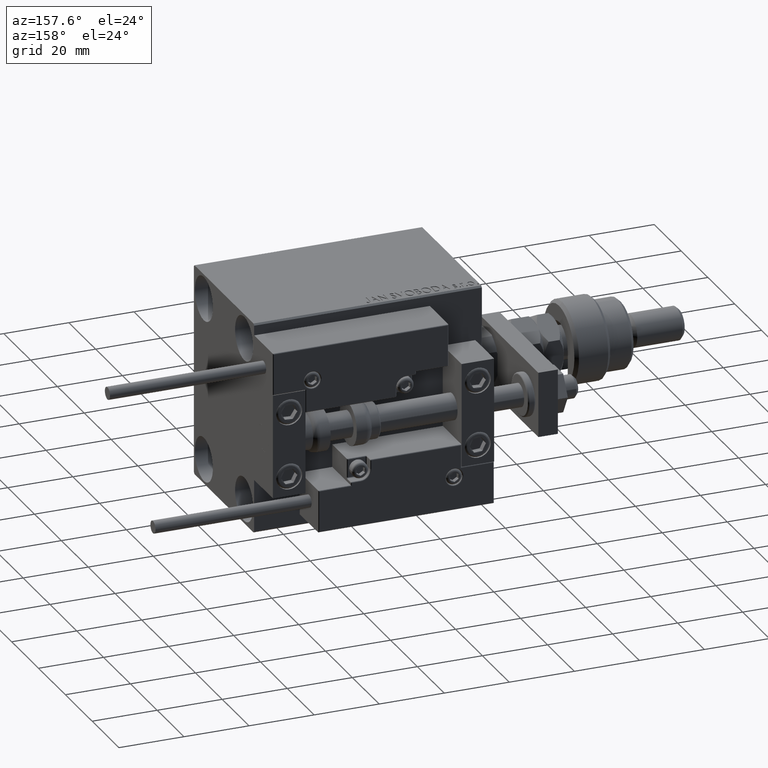
[diagram: clean part render]
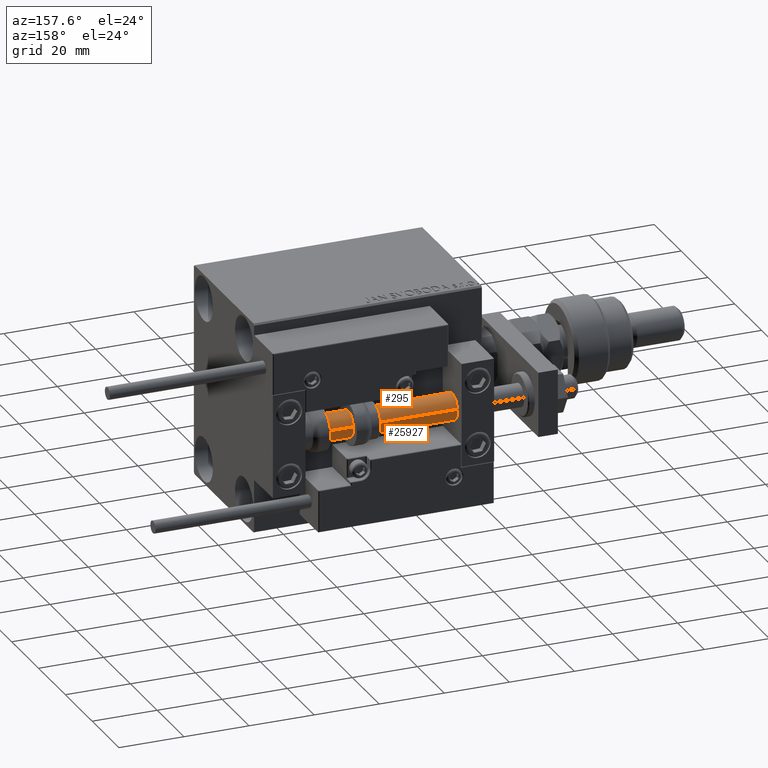
[diagram: same view with one multi-face feature highlighted, each face labeled with its STEP entity id]
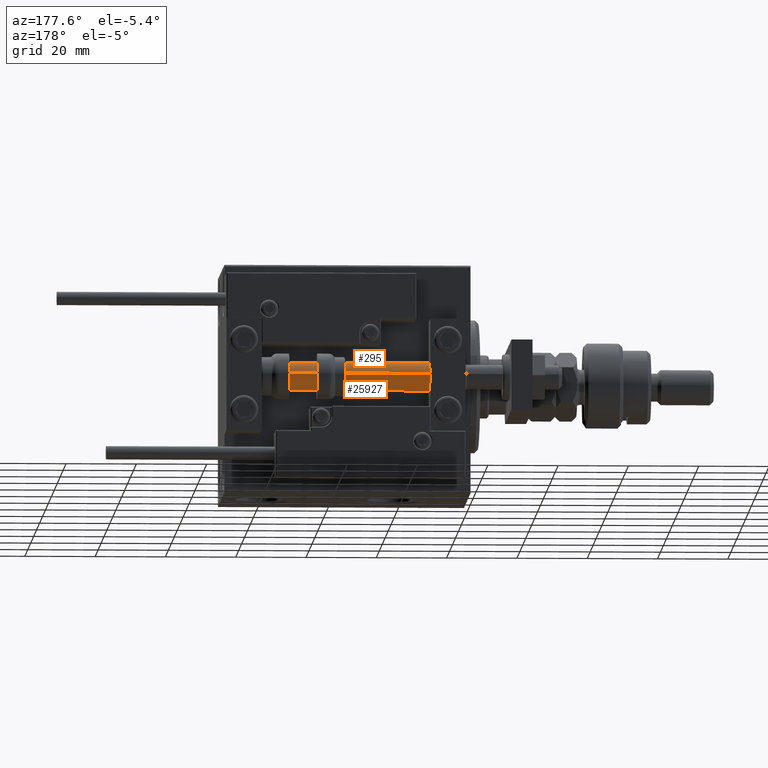
[diagram: same view with one multi-face feature highlighted, each face labeled with its STEP entity id]
A machine part, auxiliary view. The highlighted faces form ONE feature: a constant-radius fillet chain: 2 tangent blend faces with common blend radius 4 mm. The faces share edges in the B-rep.
A second angle (auxiliary view) of the same feature is appended — it is thin or edge-on in the first view.
Their STEP definitions:
[1] entity #25927 (Cylinder):
#541 = LINE ( 'NONE', #29002, #20518 ) ;
#1188 = DIRECTION ( 'NONE',  ( 0.000000000000000000, 0.000000000000000000, 1.000000000000000000 ) ) ;
#2212 = CYLINDRICAL_SURFACE ( 'NONE', #45330, 4.000000000000000000 ) ;
#3481 = AXIS2_PLACEMENT_3D ( 'NONE', #7950, #23773, #47999 ) ;
#3662 = EDGE_LOOP ( 'NONE', ( #23650, #26161, #5084, #52085 ) ) ;
#5084 = ORIENTED_EDGE ( 'NONE', *, *, #46840, .T. ) ;
#7525 = AXIS2_PLACEMENT_3D ( 'NONE', #37202, #1188, #36937 ) ;
#7950 = CARTESIAN_POINT ( 'NONE',  ( 0.000000000000000000, 0.000000000000000000, 2.000000000000029310 ) ) ;
#9615 = VERTEX_POINT ( 'NONE', #50499 ) ;
#14311 = VERTEX_POINT ( 'NONE', #39340 ) ;
#14472 = CARTESIAN_POINT ( 'NONE',  ( 4.000000000000000000, 4.898587196589412829E-16, 70.00000000000000000 ) ) ;
#15215 = CIRCLE ( 'NONE', #7525, 4.000000000000000000 ) ;
#18575 = DIRECTION ( 'NONE',  ( -1.000000000000000000, 0.000000000000000000, 0.000000000000000000 ) ) ;
#20518 = VECTOR ( 'NONE', #33316, 1000.000000000000000 ) ;
#20967 = EDGE_CURVE ( 'NONE', #36903, #9615, #15215, .T. ) ;
#23650 = ORIENTED_EDGE ( 'NONE', *, *, #48178, .F. ) ;
#23773 = DIRECTION ( 'NONE',  ( -0.000000000000000000, -0.000000000000000000, 1.000000000000000000 ) ) ;
#24819 = VECTOR ( 'NONE', #26015, 1000.000000000000000 ) ;
#25927 = ADVANCED_FACE ( 'NONE', ( #47641 ), #2212, .T. ) ;
#26015 = DIRECTION ( 'NONE',  ( -0.000000000000000000, -0.000000000000000000, -1.000000000000000000 ) ) ;
#26161 = ORIENTED_EDGE ( 'NONE', *, *, #20967, .F. ) ;
#27348 = CARTESIAN_POINT ( 'NONE',  ( -4.000000000000000000, 0.000000000000000000, 70.00000000000000000 ) ) ;
#29002 = CARTESIAN_POINT ( 'NONE',  ( -4.000000000000000000, 0.000000000000000000, 70.00000000000000000 ) ) ;
#29008 = VERTEX_POINT ( 'NONE', #52801 ) ;
#31022 = EDGE_CURVE ( 'NONE', #29008, #14311, #44667, .T. ) ;
#32017 = DIRECTION ( 'NONE',  ( -0.000000000000000000, -0.000000000000000000, -1.000000000000000000 ) ) ;
#33316 = DIRECTION ( 'NONE',  ( -0.000000000000000000, -0.000000000000000000, -1.000000000000000000 ) ) ;
#36903 = VERTEX_POINT ( 'NONE', #27348 ) ;
#36937 = DIRECTION ( 'NONE',  ( 1.000000000000000000, 0.000000000000000000, 0.000000000000000000 ) ) ;
#37202 = CARTESIAN_POINT ( 'NONE',  ( 0.000000000000000000, 0.000000000000000000, 70.00000000000000000 ) ) ;
#39340 = CARTESIAN_POINT ( 'NONE',  ( 4.000000000000000000, 4.898587196589412829E-16, 2.000000000000029310 ) ) ;
#44667 = CIRCLE ( 'NONE', #3481, 4.000000000000000000 ) ;
#45330 = AXIS2_PLACEMENT_3D ( 'NONE', #47365, #32017, #18575 ) ;
#46840 = EDGE_CURVE ( 'NONE', #36903, #29008, #541, .T. ) ;
#47365 = CARTESIAN_POINT ( 'NONE',  ( 0.000000000000000000, 0.000000000000000000, 70.00000000000000000 ) ) ;
#47641 = FACE_OUTER_BOUND ( 'NONE', #3662, .T. ) ;
#47999 = DIRECTION ( 'NONE',  ( 1.000000000000000000, 0.000000000000000000, 0.000000000000000000 ) ) ;
#48178 = EDGE_CURVE ( 'NONE', #9615, #14311, #51050, .T. ) ;
#50499 = CARTESIAN_POINT ( 'NONE',  ( 4.000000000000000000, 4.898587196589412829E-16, 70.00000000000000000 ) ) ;
#51050 = LINE ( 'NONE', #14472, #24819 ) ;
#52085 = ORIENTED_EDGE ( 'NONE', *, *, #31022, .T. ) ;
#52801 = CARTESIAN_POINT ( 'NONE',  ( -4.000000000000000000, 0.000000000000000000, 2.000000000000029310 ) ) ;
[2] entity #295 (Cylinder):
#295 = ADVANCED_FACE ( 'NONE', ( #31146 ), #35728, .T. ) ;
#541 = LINE ( 'NONE', #29002, #20518 ) ;
#2478 = ORIENTED_EDGE ( 'NONE', *, *, #21130, .F. ) ;
#6245 = CARTESIAN_POINT ( 'NONE',  ( 0.000000000000000000, 0.000000000000000000, 2.000000000000029310 ) ) ;
#6513 = DIRECTION ( 'NONE',  ( 1.000000000000000000, 0.000000000000000000, 0.000000000000000000 ) ) ;
#6727 = DIRECTION ( 'NONE',  ( -0.000000000000000000, -0.000000000000000000, -1.000000000000000000 ) ) ;
#9521 = DIRECTION ( 'NONE',  ( 0.000000000000000000, 0.000000000000000000, 1.000000000000000000 ) ) ;
#9615 = VERTEX_POINT ( 'NONE', #50499 ) ;
#14240 = DIRECTION ( 'NONE',  ( -1.000000000000000000, 0.000000000000000000, 0.000000000000000000 ) ) ;
#14311 = VERTEX_POINT ( 'NONE', #39340 ) ;
#14472 = CARTESIAN_POINT ( 'NONE',  ( 4.000000000000000000, 4.898587196589412829E-16, 70.00000000000000000 ) ) ;
#18081 = CARTESIAN_POINT ( 'NONE',  ( 0.000000000000000000, 0.000000000000000000, 70.00000000000000000 ) ) ;
#18642 = CIRCLE ( 'NONE', #31494, 4.000000000000000000 ) ;
#19321 = CARTESIAN_POINT ( 'NONE',  ( 0.000000000000000000, 0.000000000000000000, 70.00000000000000000 ) ) ;
#19737 = ORIENTED_EDGE ( 'NONE', *, *, #48178, .T. ) ;
#20518 = VECTOR ( 'NONE', #33316, 1000.000000000000000 ) ;
#21130 = EDGE_CURVE ( 'NONE', #9615, #36903, #18642, .T. ) ;
#22904 = DIRECTION ( 'NONE',  ( 1.000000000000000000, 0.000000000000000000, 0.000000000000000000 ) ) ;
#23558 = EDGE_CURVE ( 'NONE', #14311, #29008, #40179, .T. ) ;
#24819 = VECTOR ( 'NONE', #26015, 1000.000000000000000 ) ;
#25948 = ORIENTED_EDGE ( 'NONE', *, *, #46840, .F. ) ;
#26015 = DIRECTION ( 'NONE',  ( -0.000000000000000000, -0.000000000000000000, -1.000000000000000000 ) ) ;
#26149 = ORIENTED_EDGE ( 'NONE', *, *, #23558, .T. ) ;
#26887 = DIRECTION ( 'NONE',  ( -0.000000000000000000, -0.000000000000000000, 1.000000000000000000 ) ) ;
#27348 = CARTESIAN_POINT ( 'NONE',  ( -4.000000000000000000, 0.000000000000000000, 70.00000000000000000 ) ) ;
#29002 = CARTESIAN_POINT ( 'NONE',  ( -4.000000000000000000, 0.000000000000000000, 70.00000000000000000 ) ) ;
#29008 = VERTEX_POINT ( 'NONE', #52801 ) ;
#31146 = FACE_OUTER_BOUND ( 'NONE', #47342, .T. ) ;
#31494 = AXIS2_PLACEMENT_3D ( 'NONE', #18081, #9521, #22904 ) ;
#31573 = AXIS2_PLACEMENT_3D ( 'NONE', #6245, #26887, #6513 ) ;
#33316 = DIRECTION ( 'NONE',  ( -0.000000000000000000, -0.000000000000000000, -1.000000000000000000 ) ) ;
#35728 = CYLINDRICAL_SURFACE ( 'NONE', #47216, 4.000000000000000000 ) ;
#36903 = VERTEX_POINT ( 'NONE', #27348 ) ;
#39340 = CARTESIAN_POINT ( 'NONE',  ( 4.000000000000000000, 4.898587196589412829E-16, 2.000000000000029310 ) ) ;
#40179 = CIRCLE ( 'NONE', #31573, 4.000000000000000000 ) ;
#46840 = EDGE_CURVE ( 'NONE', #36903, #29008, #541, .T. ) ;
#47216 = AXIS2_PLACEMENT_3D ( 'NONE', #19321, #6727, #14240 ) ;
#47342 = EDGE_LOOP ( 'NONE', ( #2478, #19737, #26149, #25948 ) ) ;
#48178 = EDGE_CURVE ( 'NONE', #9615, #14311, #51050, .T. ) ;
#50499 = CARTESIAN_POINT ( 'NONE',  ( 4.000000000000000000, 4.898587196589412829E-16, 70.00000000000000000 ) ) ;
#51050 = LINE ( 'NONE', #14472, #24819 ) ;
#52801 = CARTESIAN_POINT ( 'NONE',  ( -4.000000000000000000, 0.000000000000000000, 2.000000000000029310 ) ) ;